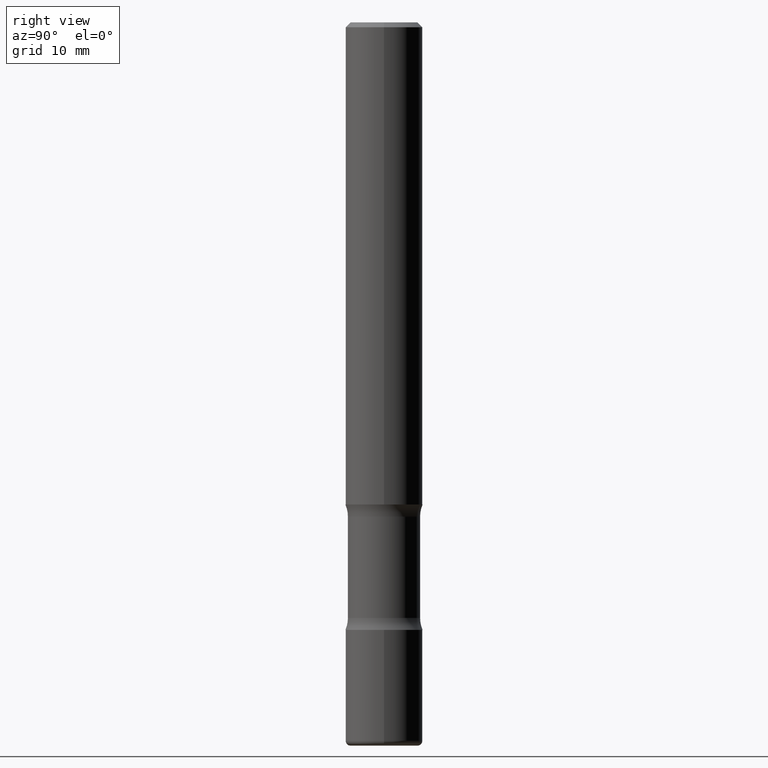
[diagram: clean part render]
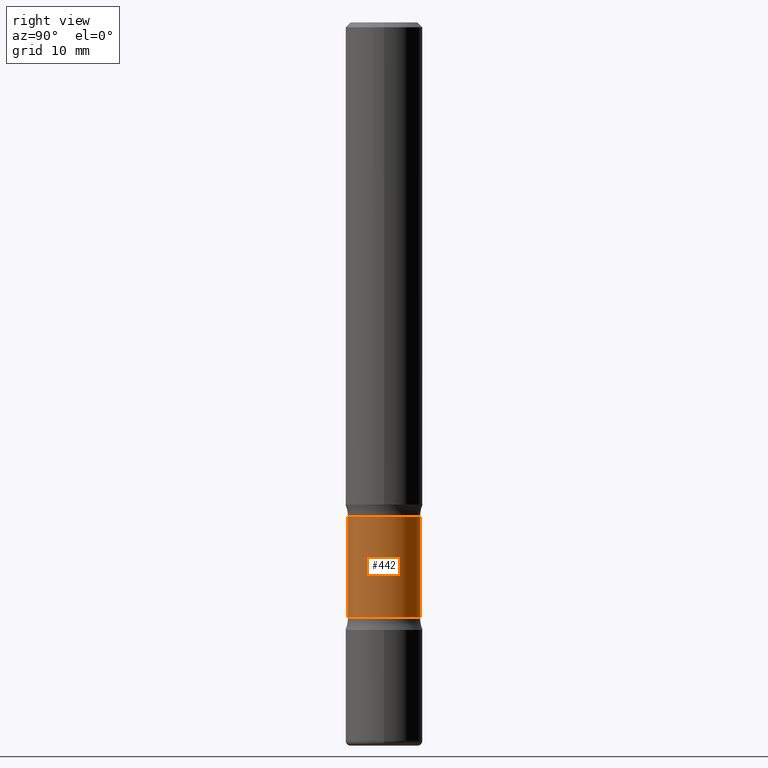
[diagram: same view with one face highlighted and labeled with its STEP entity id]
A machine part, right view. The second image highlights one B-rep face of the part: STEP entity #442.
In plain terms, the highlighted cylindrical surface (edge-blend (fillet) strip) has radius 3.7427 mm, axis along (0, -0, -1).
Its self-contained STEP definition (entity closure, byte-faithful):
#6 = EDGE_CURVE ( 'NONE', #47, #263, #469, .T. ) ;
#35 = EDGE_CURVE ( 'NONE', #199, #47, #281, .T. ) ;
#37 = EDGE_CURVE ( 'NONE', #199, #439, #192, .T. ) ;
#47 = VERTEX_POINT ( 'NONE', #461 ) ;
#72 = DIRECTION ( 'NONE',  ( 6.982962677686265133E-15, 1.000000000000000000, -3.707971487837480522E-15 ) ) ;
#81 = AXIS2_PLACEMENT_3D ( 'NONE', #321, #226, #235 ) ;
#114 = CARTESIAN_POINT ( 'NONE',  ( 7.234878300801473340E-29, -1.028974335613649852E-14, -2.952799999999999869 ) ) ;
#117 = AXIS2_PLACEMENT_3D ( 'NONE', #410, #233, #72 ) ;
#132 = EDGE_CURVE ( 'NONE', #439, #263, #253, .T. ) ;
#133 = ORIENTED_EDGE ( 'NONE', *, *, #37, .T. ) ;
#188 = CARTESIAN_POINT ( 'NONE',  ( -1.045711407310277305E-15, -0.1473500000000070587, -2.017840424602955984 ) ) ;
#192 = CIRCLE ( 'NONE', #117, 0.1473499999999999810 ) ;
#199 = VERTEX_POINT ( 'NONE', #473 ) ;
#226 = DIRECTION ( 'NONE',  ( 2.474888810202925163E-29, -3.449350218607033250E-15, -1.000000000000000000 ) ) ;
#230 = FACE_OUTER_BOUND ( 'NONE', #317, .T. ) ;
#233 = DIRECTION ( 'NONE',  ( 2.474888810202925163E-29, -3.449350218607033250E-15, -1.000000000000000000 ) ) ;
#235 = DIRECTION ( 'NONE',  ( 6.982962677686266711E-15, 1.000000000000000000, -3.707971487837479733E-15 ) ) ;
#253 = LINE ( 'NONE', #340, #338 ) ;
#256 = AXIS2_PLACEMENT_3D ( 'NONE', #114, #538, #455 ) ;
#263 = VERTEX_POINT ( 'NONE', #468 ) ;
#274 = CYLINDRICAL_SURFACE ( 'NONE', #256, 0.1473500000000000087 ) ;
#281 = LINE ( 'NONE', #494, #330 ) ;
#317 = EDGE_LOOP ( 'NONE', ( #133, #352, #394, #486 ) ) ;
#321 = CARTESIAN_POINT ( 'NONE',  ( 5.943628762121094077E-29, -8.490077908476165751E-15, -2.431059575397043204 ) ) ;
#330 = VECTOR ( 'NONE', #508, 39.37007874015748143 ) ;
#338 = VECTOR ( 'NONE', #379, 39.37007874015748143 ) ;
#340 = CARTESIAN_POINT ( 'NONE',  ( -1.010894379971562693E-15, -0.1473500000000103061, -2.952799999999998981 ) ) ;
#352 = ORIENTED_EDGE ( 'NONE', *, *, #132, .T. ) ;
#379 = DIRECTION ( 'NONE',  ( 2.474888810202925163E-29, -3.449350218607032856E-15, -1.000000000000000000 ) ) ;
#394 = ORIENTED_EDGE ( 'NONE', *, *, #6, .F. ) ;
#410 = CARTESIAN_POINT ( 'NONE',  ( 4.920957309659253149E-29, -7.064740340351969652E-15, -2.017840424602956428 ) ) ;
#439 = VERTEX_POINT ( 'NONE', #188 ) ;
#442 = ADVANCED_FACE ( 'NONE', ( #230 ), #274, .T. ) ;
#455 = DIRECTION ( 'NONE',  ( 6.982962677686265133E-15, 1.000000000000000000, -3.707971487837479733E-15 ) ) ;
#461 = CARTESIAN_POINT ( 'NONE',  ( 1.028939550557130839E-15, 0.1473499999999915433, -2.431059575397043648 ) ) ;
#468 = CARTESIAN_POINT ( 'NONE',  ( -1.045711407310266063E-15, -0.1473500000000085020, -2.431059575397042760 ) ) ;
#469 = CIRCLE ( 'NONE', #81, 0.1473500000000000087 ) ;
#473 = CARTESIAN_POINT ( 'NONE',  ( 1.028939550557120386E-15, 0.1473499999999929033, -2.017840424602956872 ) ) ;
#486 = ORIENTED_EDGE ( 'NONE', *, *, #35, .F. ) ;
#494 = CARTESIAN_POINT ( 'NONE',  ( 1.028939550557143658E-15, 0.1473499999999897114, -2.952800000000000313 ) ) ;
#508 = DIRECTION ( 'NONE',  ( 2.474888810202925163E-29, -3.449350218607032856E-15, -1.000000000000000000 ) ) ;
#538 = DIRECTION ( 'NONE',  ( 2.474888810202925163E-29, -3.449350218607033250E-15, -1.000000000000000000 ) ) ;